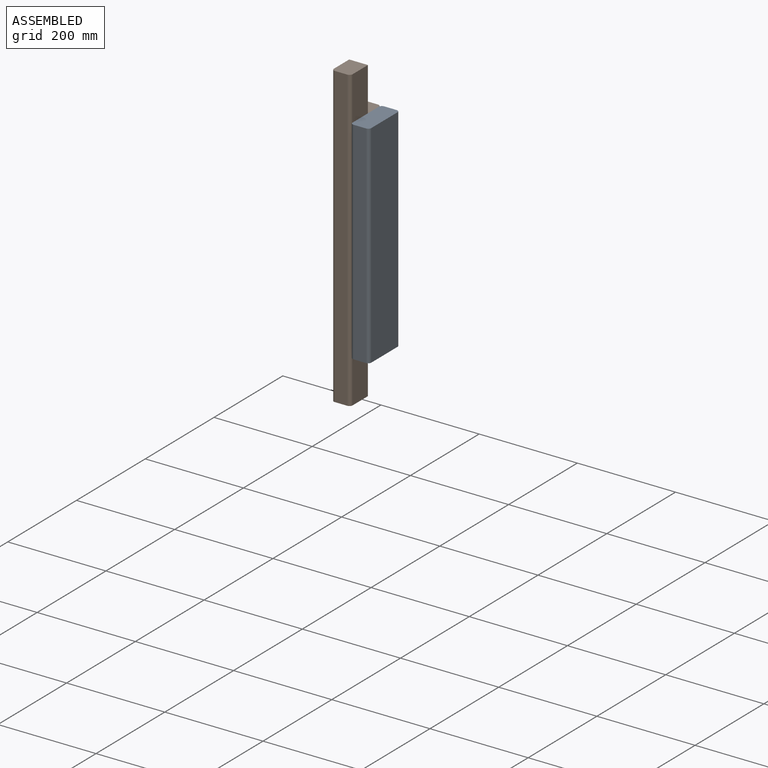
[diagram: assembled view]
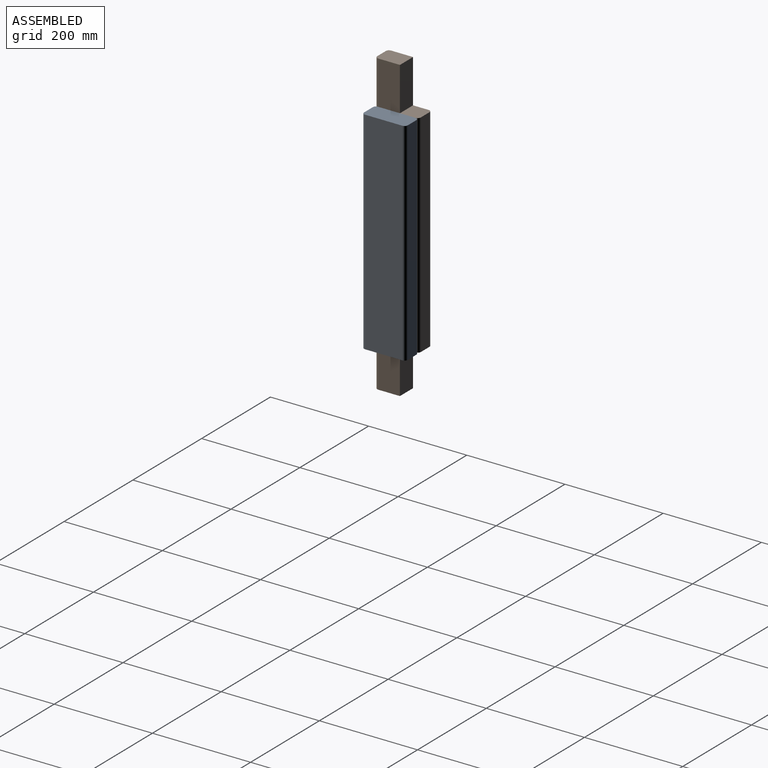
[diagram: assembled view, second angle]
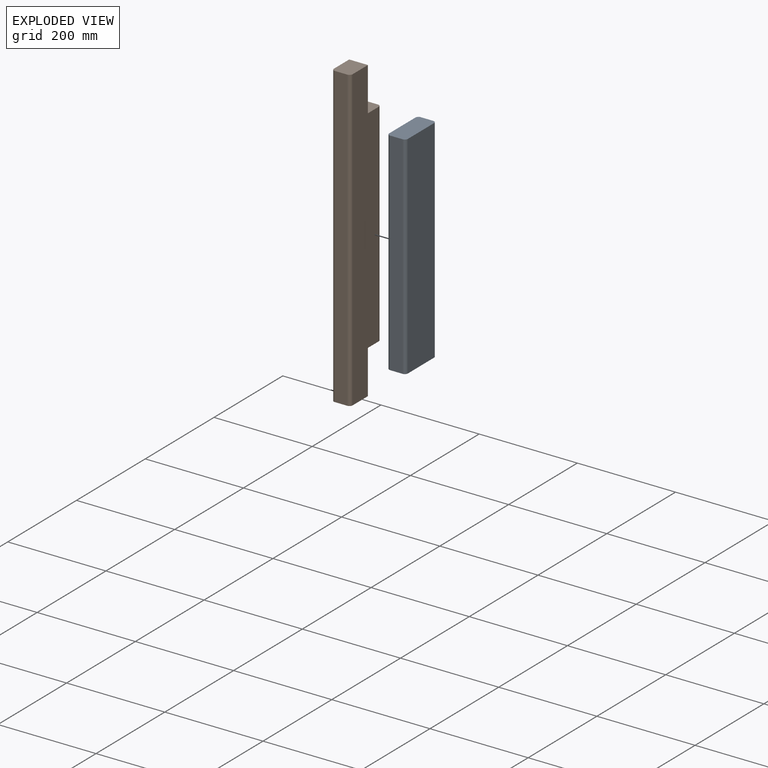
[diagram: exploded view]
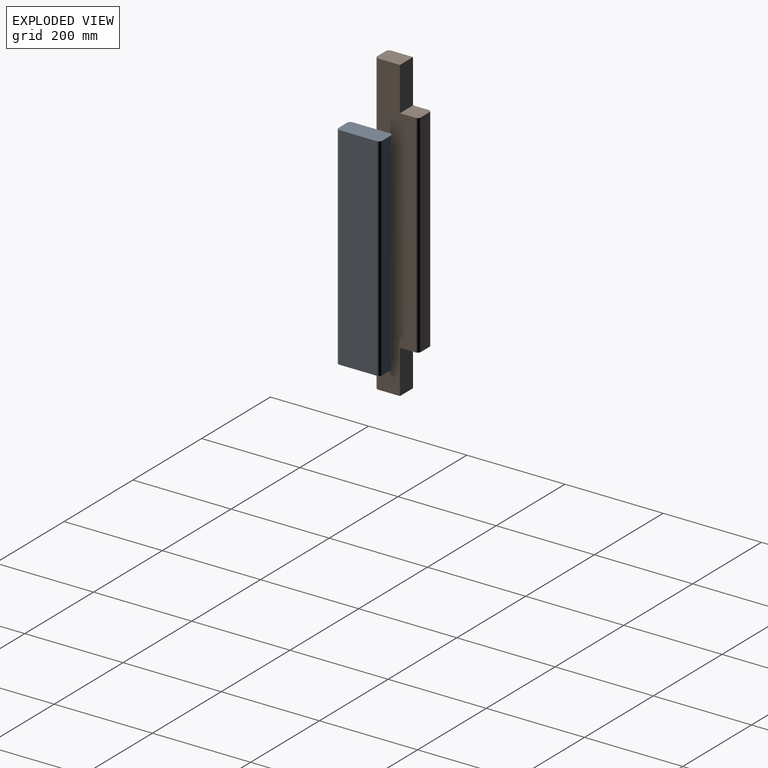
[diagram: exploded view, second angle]
ASSEMBLY  parts=2 mates=3
PART A: 10 faces, bbox 38.1x88.9x431.8 mm
  f0: plane 431.8x76.2mm, normal (1,0,0), area 32903.2mm2, adj f1,f7,f8,f9
  f1: cylinder r=6.35mm len=431.8mm, axis (0,0,-1), area 4307mm2, adj f0,f2,f8,f9
  f2: plane 431.8x25.4mm, normal (0,1,0), area 10967.7mm2, adj f1,f3,f8,f9
  f3: cylinder r=6.35mm len=431.8mm, axis (0,0,-1), area 4307mm2, adj f2,f4,f8,f9
  f4: plane 431.8x76.2mm, normal (-1,0,0), area 32903.2mm2, adj f3,f5,f8,f9
  f5: cylinder r=6.35mm len=431.8mm, axis (0,0,-1), area 4307mm2, adj f4,f6,f8,f9
  f6: plane 431.8x25.4mm, normal (0,-1,0), area 10967.7mm2, adj f5,f7,f8,f9
  f7: cylinder r=6.35mm len=431.8mm, axis (0,0,-1), area 4307mm2, adj f0,f6,f8,f9
  f8: plane 88.9x38.1mm, normal (0,0,1), area 3352.5mm2, adj f0,f1,f2,f3,f4,f5,f6,f7
  f9: plane 88.9x38.1mm, normal (0,0,-1), area 3352.5mm2, adj f0,f1,f2,f3,f4,f5,f6,f7
PART B: 14 faces, bbox 38.1x88.9x609.6 mm
  f0: plane 609.6x76.2mm, normal (1,0,0), area 40806.4mm2, adj f2,f5,f8,f9,f10,f11,f12,f13
  f1: plane 609.6x76.2mm, normal (-1,0,0), area 40806.4mm2, adj f4,f5,f6,f9,f10,f11,f12,f13
  f2: cylinder r=6.35mm len=431.8mm, axis (0,0,-1), area 4307mm2, adj f0,f3,f10,f13
  f3: plane 431.8x25.4mm, normal (0,1,0), area 10967.7mm2, adj f2,f4,f10,f13
  f4: cylinder r=6.35mm len=431.8mm, axis (0,0,-1), area 4307mm2, adj f1,f3,f10,f13
  f5: plane 50.8x38.1mm, normal (0,0,-1), area 1918.2mm2, adj f0,f1,f6,f7,f8,f11
  f6: cylinder r=6.35mm len=609.6mm, axis (0,0,-1), area 6080.5mm2, adj f1,f5,f7,f9
  f7: plane 609.6x25.4mm, normal (0,-1,0), area 15483.8mm2, adj f5,f6,f8,f9
  f8: cylinder r=6.35mm len=609.6mm, axis (0,0,-1), area 6080.5mm2, adj f0,f5,f7,f9
  f9: plane 50.8x38.1mm, normal (0,0,1), area 1918.2mm2, adj f0,f1,f6,f7,f8,f12
  f10: plane 38.1x38.1mm, normal (0,0,-1), area 1434.3mm2, adj f0,f1,f2,f3,f4,f11
  f11: plane 88.9x38.1mm, normal (0,1,0), area 3387.1mm2, adj f0,f1,f5,f10
  f12: plane 88.9x38.1mm, normal (0,1,0), area 3387.1mm2, adj f0,f1,f9,f13
  f13: plane 38.1x38.1mm, normal (0,0,1), area 1434.3mm2, adj f0,f1,f2,f3,f4,f12
PLACE A t=(38.1,0,88.9)mm
PLACE B at identity fixed
MATE planar A.f8 <-> B.f13  axis (0,0,1) through (57.15,44.45,520.7)mm
MATE planar B.f0 <-> A.f4  axis (1,0,0) through (38.1,41.38,304.8)mm
MATE planar A.f6 <-> B.f7  axis (0,-1,0) through (57.15,0,304.8)mm
